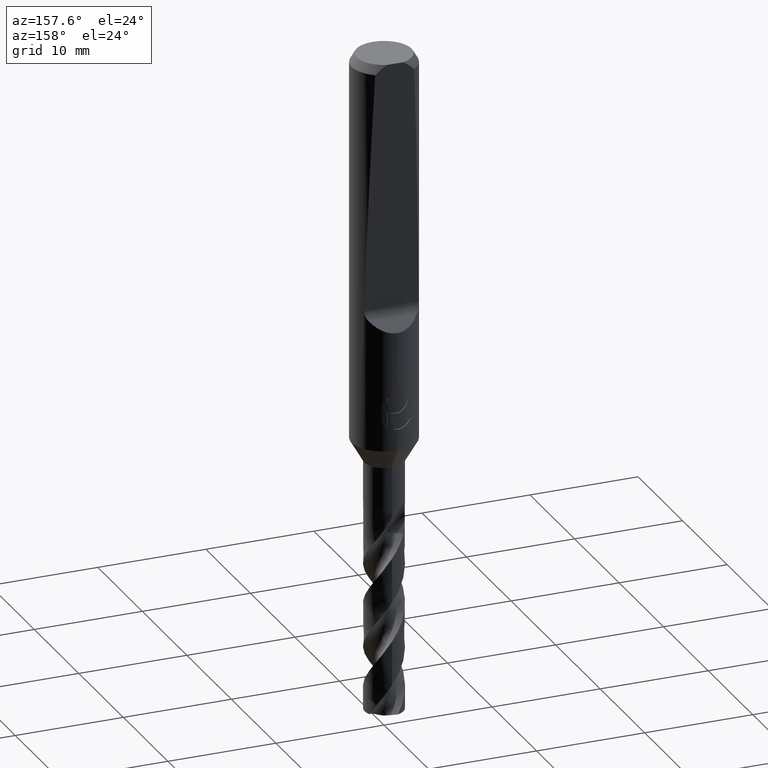
[diagram: clean part render]
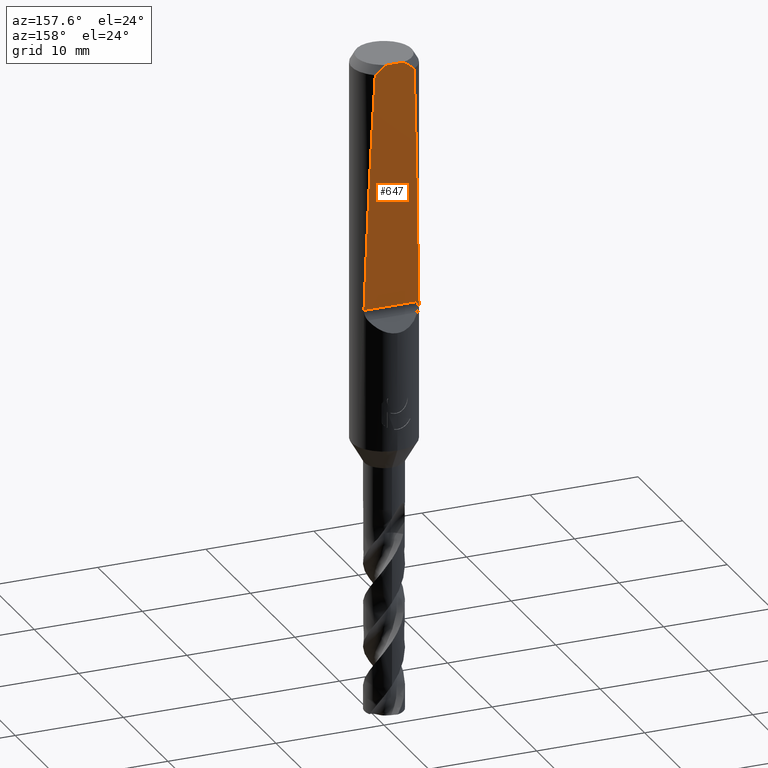
[diagram: same view with one face highlighted and labeled with its STEP entity id]
A machine part, auxiliary view. The second image highlights one B-rep face of the part: STEP entity #647.
In plain terms, the highlighted planar face has unit normal (0, -0.9994, 0.0349).
Its self-contained STEP definition (entity closure, byte-faithful):
#337=VERTEX_POINT('',#873);
#343=EDGE_CURVE('',#667,#513,#880,.T.);
#373=EDGE_CURVE('',#573,#611,#916,.T.);
#469=EDGE_CURVE('',#513,#573,#1023,.T.);
#513=VERTEX_POINT('',#1070);
#549=EDGE_CURVE('',#611,#559,#1108,.T.);
#559=VERTEX_POINT('',#1119);
#573=VERTEX_POINT('',#1134);
#611=VERTEX_POINT('',#1173);
#647=ADVANCED_FACE('',(#1212),#1213,.F.);
#667=VERTEX_POINT('',#1235);
#709=EDGE_CURVE('',#337,#667,#1280,.T.);
#711=EDGE_CURVE('',#559,#337,#1282,.T.);
#873=CARTESIAN_POINT('',(0.737618527549059,2.42857385085146,0.0));
#880=(B_SPLINE_CURVE(2,(#2233,#2234,#2235),.UNSPECIFIED.,.F.,.F.)B_SPLINE_CURVE_WITH_KNOTS((3,3),(0.0,1.33406345776389),.UNSPECIFIED.)RATIONAL_B_SPLINE_CURVE((1.0,1.01693558315787,1.0))BOUNDED_CURVE()REPRESENTATION_ITEM('')GEOMETRIC_REPRESENTATION_ITEM()CURVE());
#916=LINE('',#2472,#2473);
#1023=ELLIPSE('',#3180,85.9611250435315,3.0);
#1070=CARTESIAN_POINT('',(-1.79915003951659,2.40063723525806,-0.799999999999997));
#1108=ELLIPSE('',#3501,85.9611250435315,3.0);
#1119=CARTESIAN_POINT('',(1.79915003951659,2.40063723525806,-0.799999999999997));
#1134=CARTESIAN_POINT('',(-2.52177371746177,1.62500994394466,-23.0110595671924));
#1173=CARTESIAN_POINT('',(2.52177371746177,1.62500994394466,-23.0110595671924));
#1212=FACE_OUTER_BOUND('',#3869,.T.);
#1213=PLANE('',#3870);
#1235=CARTESIAN_POINT('',(-0.737618527549059,2.42857385085146,0.0));
#1280=LINE('',#4672,#4673);
#1282=(B_SPLINE_CURVE(2,(#4677,#4678,#4679),.UNSPECIFIED.,.F.,.F.)B_SPLINE_CURVE_WITH_KNOTS((3,3),(0.0,1.33406345776389),.UNSPECIFIED.)RATIONAL_B_SPLINE_CURVE((1.0,1.01693558315787,1.0))BOUNDED_CURVE()REPRESENTATION_ITEM('')GEOMETRIC_REPRESENTATION_ITEM()CURVE());
#2233=CARTESIAN_POINT('',(-0.73761852754906,2.42857385085146,0.0));
#2234=CARTESIAN_POINT('',(-1.22648986683237,2.42045069546147,-0.23261673520412));
#2235=CARTESIAN_POINT('',(-1.79915003951659,2.40063723525806,-0.799999999999997));
#2472=CARTESIAN_POINT('',(-3.0,1.62500994394466,-23.0110595671924));
#2473=VECTOR('',#5537,1.0);
#3180=AXIS2_PLACEMENT_3D('',#5670,#5671,#5672);
#3501=AXIS2_PLACEMENT_3D('',#5742,#5743,#5744);
#3869=EDGE_LOOP('',(#5819,#5820,#5821,#5822,#5823,#5824));
#3870=AXIS2_PLACEMENT_3D('',#5825,#5826,#5827);
#4672=CARTESIAN_POINT('',(-1.5,2.42857385085146,0.0));
#4673=VECTOR('',#5894,1.0);
#4677=CARTESIAN_POINT('',(1.79915003951659,2.40063723525806,-0.799999999999997));
#4678=CARTESIAN_POINT('',(1.22648986683237,2.42045069546147,-0.23261673520412));
#4679=CARTESIAN_POINT('',(0.73761852754906,2.42857385085146,0.0));
#5537=DIRECTION('',(1.0,0.0,0.0));
#5670=CARTESIAN_POINT('',(0.0,0.0,-69.5452559092481));
#5671=DIRECTION('',(0.0,-0.999390827019096,0.0348994967025009));
#5672=DIRECTION('',(0.0,0.0348994967025009,0.999390827019096));
#5742=CARTESIAN_POINT('',(0.0,0.0,-69.5452559092481));
#5743=DIRECTION('',(0.0,-0.999390827019096,0.0348994967025009));
#5744=DIRECTION('',(0.0,0.0348994967025009,0.999390827019096));
#5819=ORIENTED_EDGE('',*,*,#469,.F.);
#5820=ORIENTED_EDGE('',*,*,#343,.F.);
#5821=ORIENTED_EDGE('',*,*,#709,.F.);
#5822=ORIENTED_EDGE('',*,*,#711,.F.);
#5823=ORIENTED_EDGE('',*,*,#549,.F.);
#5824=ORIENTED_EDGE('',*,*,#373,.F.);
#5825=CARTESIAN_POINT('',(-3.0,1.62500994394466,-23.0110595671924));
#5826=DIRECTION('',(0.0,-0.999390827019096,0.0348994967025009));
#5827=DIRECTION('',(0.0,-0.0348994967025009,-0.999390827019096));
#5894=DIRECTION('',(-1.0,0.0,0.0));